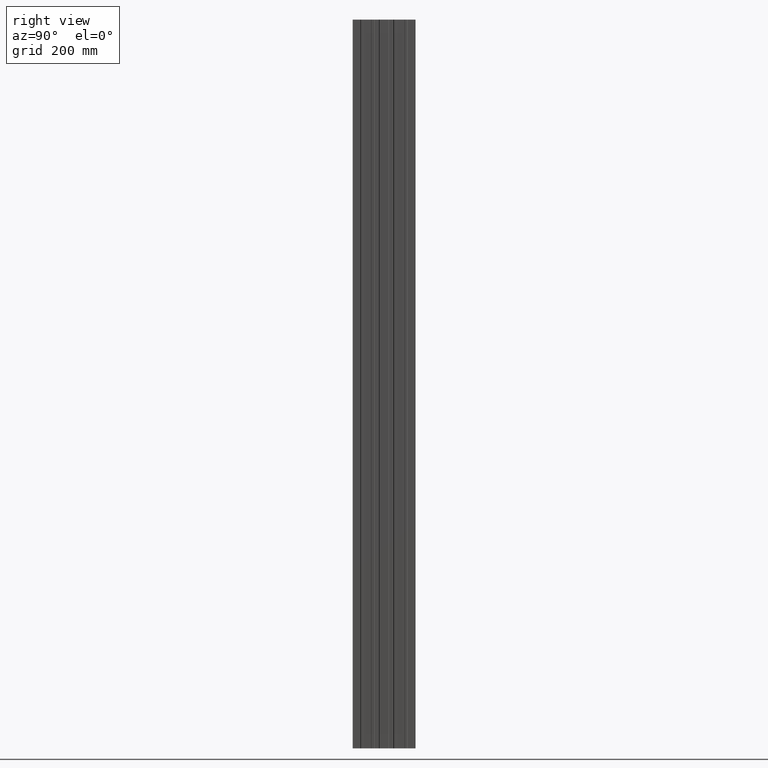
[diagram: clean part render]
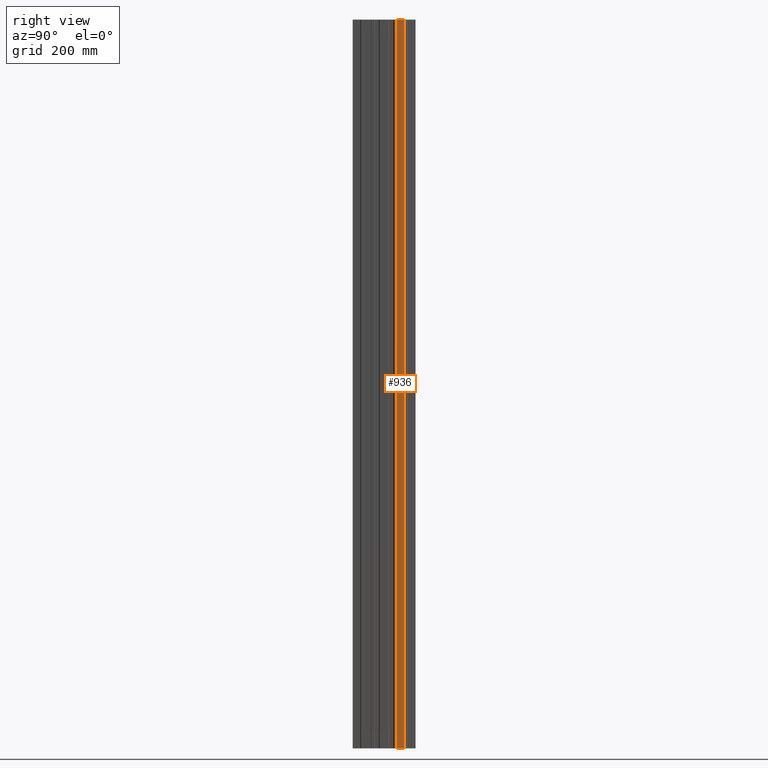
[diagram: same view with one face highlighted and labeled with its STEP entity id]
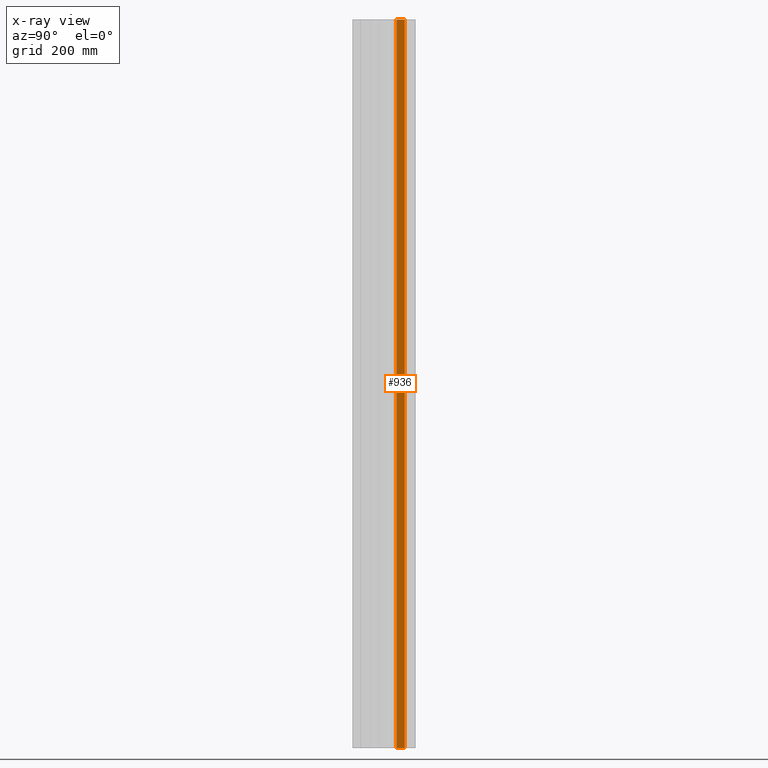
[diagram: x-ray of the same camera — body ghosted, the highlighted face saturated]
A machine part, right view. The second image highlights one B-rep face of the part: STEP entity #936.
The next image is the same camera in x-ray: the body ghosted, the highlighted face saturated — about 0% of this face is hidden behind the body in this view.
In plain terms, the highlighted planar face has unit normal (-1, 0, 0).
Its self-contained STEP definition (entity closure, byte-faithful):
#87 = CARTESIAN_POINT ( 'NONE',  ( 4.000000000000000900, 140.3000000000000100, 1162.000000000000000 ) ) ;
#185 = CARTESIAN_POINT ( 'NONE',  ( 4.000000000000000900, 140.3000000000000100, -1162.000000000000000 ) ) ;
#258 = VERTEX_POINT ( 'NONE', #464 ) ;
#281 = VECTOR ( 'NONE', #1381, 1000.000000000000000 ) ;
#352 = CARTESIAN_POINT ( 'NONE',  ( 4.000000000000000900, 140.3000000000000100, -1162.000000000000000 ) ) ;
#455 = ORIENTED_EDGE ( 'NONE', *, *, #2524, .T. ) ;
#464 = CARTESIAN_POINT ( 'NONE',  ( 4.000000000000000900, 140.3000000000000100, 1162.000000000000000 ) ) ;
#584 = CARTESIAN_POINT ( 'NONE',  ( 4.000000000000000900, 140.3000000000000100, 1162.000000000000000 ) ) ;
#601 = VERTEX_POINT ( 'NONE', #352 ) ;
#648 = ORIENTED_EDGE ( 'NONE', *, *, #1136, .F. ) ;
#663 = CARTESIAN_POINT ( 'NONE',  ( 4.000000000000003600, 165.7000000000000200, 1162.000000000000000 ) ) ;
#689 = LINE ( 'NONE', #1048, #1593 ) ;
#758 = DIRECTION ( 'NONE',  ( -1.000000000000000000, 1.024442997624098500E-016, 0.0000000000000000000 ) ) ;
#852 = DIRECTION ( 'NONE',  ( 1.024442997624098500E-016, 1.000000000000000000, 0.0000000000000000000 ) ) ;
#904 = CARTESIAN_POINT ( 'NONE',  ( 4.000000000000003600, 165.7000000000000200, -1162.000000000000000 ) ) ;
#936 = ADVANCED_FACE ( 'NONE', ( #1906 ), #1750, .F. ) ;
#1048 = CARTESIAN_POINT ( 'NONE',  ( 4.000000000000000900, 140.3000000000000100, 1162.000000000000000 ) ) ;
#1085 = VERTEX_POINT ( 'NONE', #2462 ) ;
#1091 = LINE ( 'NONE', #185, #1504 ) ;
#1136 = EDGE_CURVE ( 'NONE', #258, #1085, #689, .T. ) ;
#1198 = EDGE_LOOP ( 'NONE', ( #455, #2235, #648, #1623 ) ) ;
#1334 = VECTOR ( 'NONE', #1858, 1000.000000000000000 ) ;
#1381 = DIRECTION ( 'NONE',  ( -0.0000000000000000000, -0.0000000000000000000, -1.000000000000000000 ) ) ;
#1504 = VECTOR ( 'NONE', #1701, 1000.000000000000000 ) ;
#1593 = VECTOR ( 'NONE', #852, 1000.000000000000000 ) ;
#1623 = ORIENTED_EDGE ( 'NONE', *, *, #1720, .T. ) ;
#1701 = DIRECTION ( 'NONE',  ( 1.024442997624098500E-016, 1.000000000000000000, 0.0000000000000000000 ) ) ;
#1720 = EDGE_CURVE ( 'NONE', #258, #601, #1749, .T. ) ;
#1749 = LINE ( 'NONE', #87, #281 ) ;
#1750 = PLANE ( 'NONE',  #1855 ) ;
#1855 = AXIS2_PLACEMENT_3D ( 'NONE', #584, #758, #2182 ) ;
#1858 = DIRECTION ( 'NONE',  ( -0.0000000000000000000, -0.0000000000000000000, -1.000000000000000000 ) ) ;
#1900 = LINE ( 'NONE', #663, #1334 ) ;
#1906 = FACE_OUTER_BOUND ( 'NONE', #1198, .T. ) ;
#2182 = DIRECTION ( 'NONE',  ( -1.024442997624098500E-016, -1.000000000000000000, 0.0000000000000000000 ) ) ;
#2235 = ORIENTED_EDGE ( 'NONE', *, *, #2386, .F. ) ;
#2386 = EDGE_CURVE ( 'NONE', #1085, #2537, #1900, .T. ) ;
#2462 = CARTESIAN_POINT ( 'NONE',  ( 4.000000000000003600, 165.7000000000000200, 1162.000000000000000 ) ) ;
#2524 = EDGE_CURVE ( 'NONE', #601, #2537, #1091, .T. ) ;
#2537 = VERTEX_POINT ( 'NONE', #904 ) ;